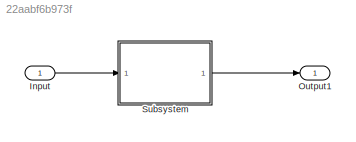
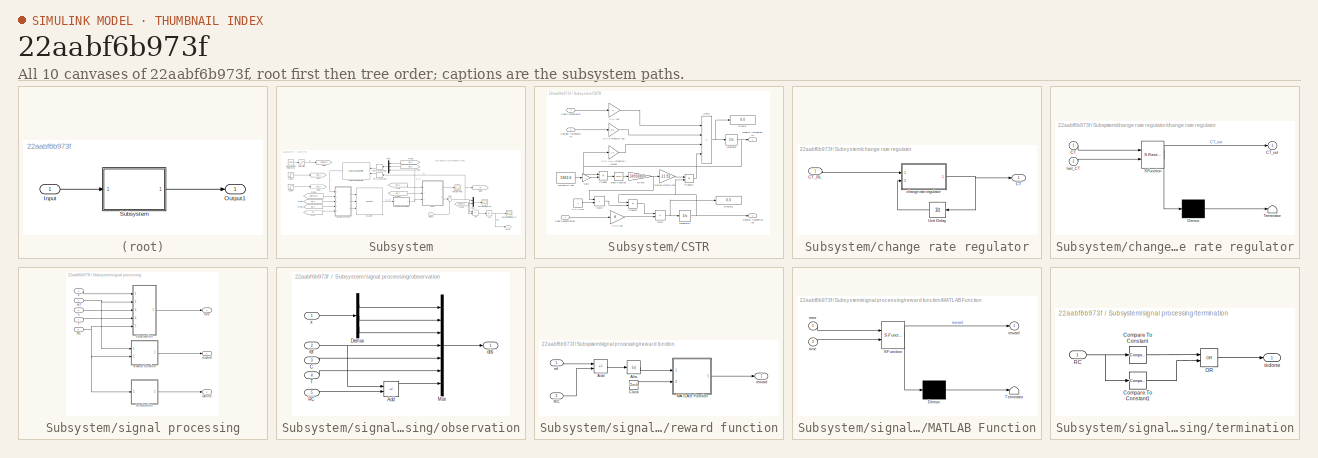
[diagram: thumbnail index - all 10 canvases of the model, root first then tree order]
MODEL slx_22aabf6b973f
KIND model
CONFIG AbsTol = auto
CONFIG EnableMultiTasking = off
CONFIG FixedStep = Ts
CONFIG MaxStep = auto
CONFIG MinStep = auto
CONFIG RelTol = 1e-3
CONFIG SampleTimeConstraint = Unconstrained
CONFIG SolverName = FixedStepAuto
CONFIG StartTime = 0.0
CONFIG StopTime = T
BLOCK [Inport] Input
BLOCK [Outport] Output1
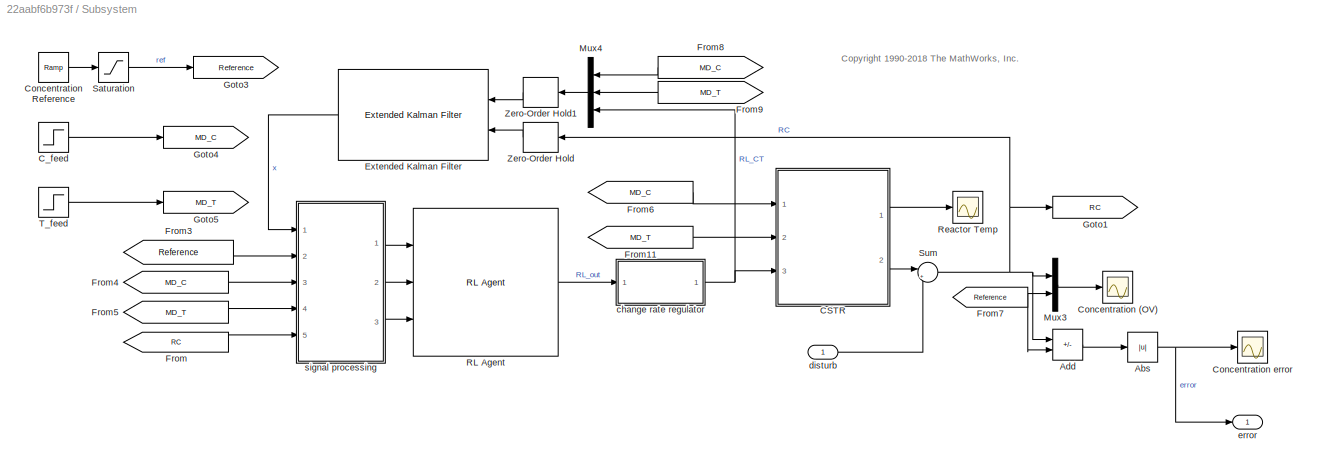
BLOCK [SubSystem] Subsystem
  Ports = [1, 1]
  RequestExecContextInheritance = off
BLOCK [Abs] Subsystem/Abs
  SaturateOnIntegerOverflow = off
BLOCK [Sum] Subsystem/Add
  IconShape = rectangular
  Inputs = +-
  Ports = [2, 1]
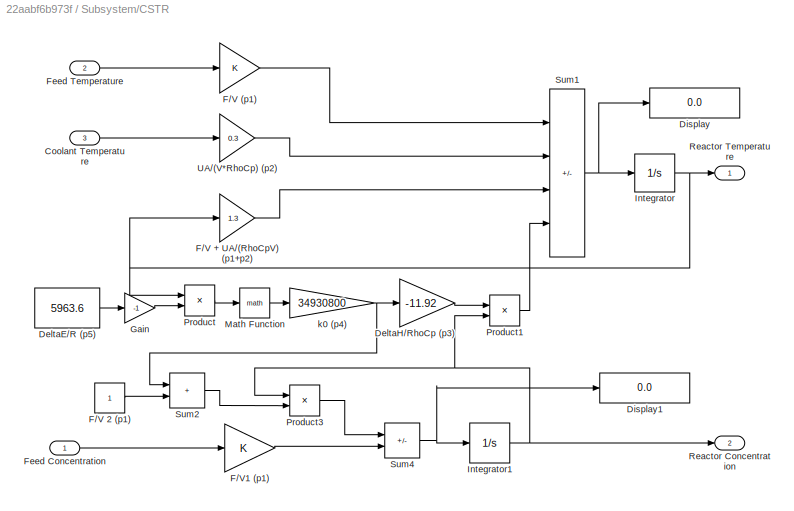
BLOCK [SubSystem] Subsystem/CSTR
  Ports = [3, 2]
  RequestExecContextInheritance = off
BLOCK [Inport] Subsystem/CSTR/Coolant Temperature
  Port = 3
BLOCK [Constant] Subsystem/CSTR/DeltaE//R (p5)
  Value = 5963.6
BLOCK [Gain] Subsystem/CSTR/DeltaH//RhoCp (p3)
  Gain = -11.92
  OutDataTypeStr = Inherit: Same as input
  ParamDataTypeStr = Inherit: Same as input
  SaturateOnIntegerOverflow = on
BLOCK [Display] Subsystem/CSTR/Display
  Decimation = 1
  Ports = [1]
BLOCK [Display] Subsystem/CSTR/Display1
  Decimation = 1
  Ports = [1]
BLOCK [Gain] Subsystem/CSTR/F//V (p1)
  OutDataTypeStr = Inherit: Same as input
  ParamDataTypeStr = Inherit: Same as input
  SaturateOnIntegerOverflow = on
BLOCK [Gain] Subsystem/CSTR/F//V + UA//(RhoCpV) (p1+p2)
  Gain = 1.3
  OutDataTypeStr = Inherit: Same as input
  ParamDataTypeStr = Inherit: Same as input
  SaturateOnIntegerOverflow = on
BLOCK [Constant] Subsystem/CSTR/F//V 2 (p1)
BLOCK [Gain] Subsystem/CSTR/F//V1 (p1)
  OutDataTypeStr = Inherit: Same as input
  ParamDataTypeStr = Inherit: Same as input
  SaturateOnIntegerOverflow = on
BLOCK [Inport] Subsystem/CSTR/Feed Concentration
BLOCK [Inport] Subsystem/CSTR/Feed Temperature
  Port = 2
BLOCK [Gain] Subsystem/CSTR/Gain
  Gain = -1
BLOCK [Integrator] Subsystem/CSTR/Integrator
  InitialCondition = x0(1)
  LimitOutput = on
  LowerSaturationLimit = 0
  Ports = [1, 1]
BLOCK [Integrator] Subsystem/CSTR/Integrator1
  InitialCondition = x0(2)
  LimitOutput = on
  LowerSaturationLimit = 0
  Ports = [1, 1]
BLOCK [Math] Subsystem/CSTR/Math Function
  Ports = [1, 1]
  SignedPower = on
BLOCK [Product] Subsystem/CSTR/Product
  InputSameDT = on
  Inputs = /*
  OutDataTypeStr = Inherit: Same as first input
  Ports = [2, 1]
  RndMeth = Zero
  SaturateOnIntegerOverflow = on
BLOCK [Product] Subsystem/CSTR/Product1
  InputSameDT = on
  OutDataTypeStr = Inherit: Same as first input
  Ports = [2, 1]
  RndMeth = Zero
  SaturateOnIntegerOverflow = on
BLOCK [Product] Subsystem/CSTR/Product3
  InputSameDT = on
  OutDataTypeStr = Inherit: Same as first input
  Ports = [2, 1]
  RndMeth = Zero
  SaturateOnIntegerOverflow = on
BLOCK [Outport] Subsystem/CSTR/Reactor Concentration
  Port = 2
  VectorParamsAs1DForOutWhenUnconnected = off
BLOCK [Outport] Subsystem/CSTR/Reactor Temperature
  VectorParamsAs1DForOutWhenUnconnected = off
BLOCK [Sum] Subsystem/CSTR/Sum1
  IconShape = rectangular
  InputSameDT = on
  Inputs = ++--
  OutDataTypeStr = Inherit: Same as first input
  Ports = [4, 1]
  SaturateOnIntegerOverflow = on
BLOCK [Sum] Subsystem/CSTR/Sum2
  IconShape = rectangular
  InputSameDT = on
  OutDataTypeStr = Inherit: Same as first input
  Ports = [2, 1]
  SaturateOnIntegerOverflow = on
BLOCK [Sum] Subsystem/CSTR/Sum4
  IconShape = rectangular
  InputSameDT = on
  Inputs = -+
  OutDataTypeStr = Inherit: Same as first input
  Ports = [2, 1]
  SaturateOnIntegerOverflow = on
BLOCK [Gain] Subsystem/CSTR/UA//(V*RhoCp) (p2)
  Gain = 0.3
  OutDataTypeStr = Inherit: Same as input
  ParamDataTypeStr = Inherit: Same as input
  SaturateOnIntegerOverflow = on
BLOCK [Gain] Subsystem/CSTR/k0 (p4)
  Gain = 34930800
  OutDataTypeStr = Inherit: Same as input
  ParamDataTypeStr = Inherit: Same as input
  SaturateOnIntegerOverflow = on
BLOCK [Step] Subsystem/C_feed
  After = 10.3
  Before = 10
  SampleTime = 0
  Time = 10
BLOCK [Scope] Subsystem/Concentration (OV)
  Floating = off
  NumInputPorts = 1
  Ports = [1]
  ScopeSpecificationString = Simulink.scopes.TimeScopeBlockCfg('CurrentConfiguration', extmgr.ConfigurationSet(extmgr.Configuration('Core','General UI',true),extmgr.Configuration('Core','Source UI',true),extmgr.Configuration('Sources','WiredSimulink',true),extmgr.Configuration('Visuals','Time Domain',true,'SerializedDisplays',{struct('MinYLimReal','1.15346','MaxYLimReal','9.39385','YLabelReal','','MinYLimMag','1.15346','MaxYL...<+1400ch>
BLOCK [Reference] Subsystem/Concentration Reference  REF=simulink/Sources/Ramp
  Ports = [0, 1]
  SourceBlock = simulink/Sources/Ramp
  SourceProductBaseCode = SL
  SourceType = Ramp
BLOCK [Scope] Subsystem/Concentration error
  Floating = off
  NumInputPorts = 1
  Ports = [1]
  ScopeSpecificationString = Simulink.scopes.TimeScopeBlockCfg('CurrentConfiguration', extmgr.ConfigurationSet(extmgr.Configuration('Core','General UI',true),extmgr.Configuration('Core','Source UI',true),extmgr.Configuration('Sources','WiredSimulink',true,'DataLoggingVariableName','ScopeData1'),extmgr.Configuration('Visuals','Time Domain',true,'SerializedDisplays',{struct('MinYLimReal','1.15346','MaxYLimReal','9.39385','YLabe...<+1439ch>
BLOCK [Reference] Subsystem/Extended Kalman Filter  REF=sharedTrackingLibrary/Extended Kalman Filter
  Ports = [2, 1]
  SourceBlock = sharedTrackingLibrary/Extended Kalman Filter
  SourceProductBaseCode = CT,DR,TF,ID,LP,NV,AR,RO,RR,UV,VE
  SourceType = Extended Kalman Filter
BLOCK [From] Subsystem/From
  GotoTag = RC
BLOCK [From] Subsystem/From11
  GotoTag = MD_T
BLOCK [From] Subsystem/From3
  GotoTag = Reference
BLOCK [From] Subsystem/From4
  GotoTag = MD_C
BLOCK [From] Subsystem/From5
  GotoTag = MD_T
BLOCK [From] Subsystem/From6
  GotoTag = MD_C
BLOCK [From] Subsystem/From7
  GotoTag = Reference
BLOCK [From] Subsystem/From8
  GotoTag = MD_C
BLOCK [From] Subsystem/From9
  GotoTag = MD_T
BLOCK [Goto] Subsystem/Goto1
  GotoTag = RC
BLOCK [Goto] Subsystem/Goto3
  GotoTag = Reference
BLOCK [Goto] Subsystem/Goto4
  GotoTag = MD_C
BLOCK [Goto] Subsystem/Goto5
  GotoTag = MD_T
BLOCK [Mux] Subsystem/Mux3
  DisplayOption = bar
  Inputs = 2
  Ports = [2, 1]
BLOCK [Mux] Subsystem/Mux4
  DisplayOption = bar
  Inputs = 3
  Ports = [3, 1]
BLOCK [Reference] Subsystem/RL Agent  REF=rllib/RL Agent
  Ports = [3, 1]
  SourceBlock = rllib/RL Agent
  SourceProductBaseCode = RL
  SourceType = RL Agent
BLOCK [Scope] Subsystem/Reactor Temp
  Floating = off
  NumInputPorts = 1
  Ports = [1]
  ScopeSpecificationString = Simulink.scopes.TimeScopeBlockCfg('CurrentConfiguration', extmgr.ConfigurationSet(extmgr.Configuration('Core','General UI',true),extmgr.Configuration('Core','Source UI',true),extmgr.Configuration('Sources','WiredSimulink',true,'DataLoggingVariableName','ScopeData1'),extmgr.Configuration('Visuals','Time Domain',true,'SerializedDisplays',{struct('MinYLimReal','301.39432','MaxYLimReal','399.70963','Y...<+1404ch>
BLOCK [Saturate] Subsystem/Saturation
  LowerLimit = 2
  UpperLimit = 10
BLOCK [Sum] Subsystem/Sum
  Inputs = |++
  Ports = [2, 1]
BLOCK [Step] Subsystem/T_feed
  After = 298.15
  Before = 298.15
  SampleTime = 301
  Time = 20
BLOCK [ZeroOrderHold] Subsystem/Zero-Order Hold
  SampleTime = Ts
BLOCK [ZeroOrderHold] Subsystem/Zero-Order Hold1
  SampleTime = Ts
BLOCK [SubSystem] Subsystem/change rate regulator
  Ports = [1, 1]
  RequestExecContextInheritance = off
BLOCK [Outport] Subsystem/change rate regulator/CT 
BLOCK [Inport] Subsystem/change rate regulator/CT_RL
BLOCK [UnitDelay] Subsystem/change rate regulator/Unit Delay
  HasFrameUpgradeWarning = on
  InitialCondition = 300
  SampleTime = -1
BLOCK [SubSystem] Subsystem/change rate regulator/change rate regulator
  ErrorFcn = Stateflow.Translate.translate
  PermitHierarchicalResolution = ExplicitOnly
  Ports = [2, 1]
  RequestExecContextInheritance = off
  SFBlockType = MATLAB Function
  TreatAsAtomicUnit = on
BLOCK [Demux] Subsystem/change rate regulator/change rate regulator/ Demux 
  Outputs = 1
  Ports = [1, 1]
BLOCK [S-Function] Subsystem/change rate regulator/change rate regulator/ SFunction 
  EnableBusSupport = on
  FunctionName = sf_sfun
  PortCounts = [2 2]
  Ports = [2, 2]
  SFcnIsStateOwnerBlock = off
  SFunctionDeploymentMode = off
  Tag = Stateflow S-Function 1
BLOCK [Terminator] Subsystem/change rate regulator/change rate regulator/ Terminator 
BLOCK [Inport] Subsystem/change rate regulator/change rate regulator/CT
BLOCK [Outport] Subsystem/change rate regulator/change rate regulator/CT_out
BLOCK [Inport] Subsystem/change rate regulator/change rate regulator/last_CT
  Port = 2
BLOCK [Inport] Subsystem/disturb
BLOCK [Outport] Subsystem/error
BLOCK [SubSystem] Subsystem/signal processing
  Ports = [5, 3]
  RequestExecContextInheritance = off
BLOCK [Inport] Subsystem/signal processing/C
  Port = 3
BLOCK [Inport] Subsystem/signal processing/RC
  Port = 5
BLOCK [Inport] Subsystem/signal processing/T
  Port = 4
BLOCK [Outport] Subsystem/signal processing/isdone
  Port = 3
BLOCK [Outport] Subsystem/signal processing/obs
BLOCK [SubSystem] Subsystem/signal processing/observation
  Ports = [5, 1]
  RequestExecContextInheritance = off
BLOCK [Sum] Subsystem/signal processing/observation/Add
  IconShape = rectangular
  Inputs = +-
  Ports = [2, 1]
BLOCK [Inport] Subsystem/signal processing/observation/C
  Port = 3
BLOCK [Demux] Subsystem/signal processing/observation/Demux
  Outputs = 3
  Ports = [1, 3]
BLOCK [Mux] Subsystem/signal processing/observation/Mux
  DisplayOption = bar
  Inputs = 7
  Ports = [7, 1]
BLOCK [Inport] Subsystem/signal processing/observation/RC
  Port = 5
BLOCK [Inport] Subsystem/signal processing/observation/T
  Port = 4
BLOCK [Outport] Subsystem/signal processing/observation/obs
BLOCK [Inport] Subsystem/signal processing/observation/ref
  Port = 2
BLOCK [Inport] Subsystem/signal processing/observation/x
BLOCK [Inport] Subsystem/signal processing/ref
  Port = 2
BLOCK [Outport] Subsystem/signal processing/reward
  Port = 2
BLOCK [SubSystem] Subsystem/signal processing/reward function
  Ports = [2, 1]
  RequestExecContextInheritance = off
BLOCK [Abs] Subsystem/signal processing/reward function/Abs
  SaturateOnIntegerOverflow = off
BLOCK [Sum] Subsystem/signal processing/reward function/Add
  IconShape = rectangular
  Inputs = +-
  Ports = [2, 1]
BLOCK [Clock] Subsystem/signal processing/reward function/Clock
BLOCK [SubSystem] Subsystem/signal processing/reward function/MATLAB Function
  ErrorFcn = Stateflow.Translate.translate
  PermitHierarchicalResolution = ExplicitOnly
  Ports = [2, 1]
  RequestExecContextInheritance = off
  SFBlockType = MATLAB Function
  TreatAsAtomicUnit = on
BLOCK [Demux] Subsystem/signal processing/reward function/MATLAB Function/ Demux 
  Outputs = 1
  Ports = [1, 1]
BLOCK [S-Function] Subsystem/signal processing/reward function/MATLAB Function/ SFunction 
  EnableBusSupport = on
  FunctionName = sf_sfun
  PortCounts = [2 2]
  Ports = [2, 2]
  SFcnIsStateOwnerBlock = off
  SFunctionDeploymentMode = off
  Tag = Stateflow S-Function 2
BLOCK [Terminator] Subsystem/signal processing/reward function/MATLAB Function/ Terminator 
BLOCK [Inport] Subsystem/signal processing/reward function/MATLAB Function/error
BLOCK [Outport] Subsystem/signal processing/reward function/MATLAB Function/reward
BLOCK [Inport] Subsystem/signal processing/reward function/MATLAB Function/time
  Port = 2
BLOCK [Inport] Subsystem/signal processing/reward function/RC
  Port = 2
BLOCK [Inport] Subsystem/signal processing/reward function/ref
BLOCK [Outport] Subsystem/signal processing/reward function/reward
BLOCK [SubSystem] Subsystem/signal processing/termination
  Ports = [1, 1]
  RequestExecContextInheritance = off
BLOCK [Reference] Subsystem/signal processing/termination/Compare To Constant  REF=simulink/Logic and Bit
Operations/Compare
To Constant
  Ports = [1, 1]
  SourceBlock = simulink/Logic and Bit\nOperations/Compare\nTo Constant
  SourceProductBaseCode = SL
  SourceType = Compare To Constant
BLOCK [Reference] Subsystem/signal processing/termination/Compare To Constant1  REF=simulink/Logic and Bit
Operations/Compare
To Constant
  Ports = [1, 1]
  SourceBlock = simulink/Logic and Bit\nOperations/Compare\nTo Constant
  SourceProductBaseCode = SL
  SourceType = Compare To Constant
BLOCK [Logic] Subsystem/signal processing/termination/OR
  AllPortsSameDT = off
  IconShape = distinctive
  Operator = OR
  OutDataTypeStr = boolean
  Ports = [2, 1]
BLOCK [Inport] Subsystem/signal processing/termination/RC
BLOCK [Outport] Subsystem/signal processing/termination/isdone
BLOCK [Inport] Subsystem/signal processing/x
ANNOTATION Subsystem: <copyright redacted>
LINE Input:1 -> Subsystem:1
NET Subsystem/Abs:1 -> Subsystem/Concentration error:1, Subsystem/error:1
LINE Subsystem/Add:1 -> Subsystem/Abs:1
LINE Subsystem/CSTR/Coolant Temperature:1 -> Subsystem/CSTR/UA//(V*RhoCp) (p2):1
LINE Subsystem/CSTR/DeltaE//R (p5):1 -> Subsystem/CSTR/Gain:1
LINE Subsystem/CSTR/DeltaH//RhoCp (p3):1 -> Subsystem/CSTR/Product1:1
LINE Subsystem/CSTR/F//V (p1):1 -> Subsystem/CSTR/Sum1:1
LINE Subsystem/CSTR/F//V + UA//(RhoCpV) (p1+p2):1 -> Subsystem/CSTR/Sum1:3
LINE Subsystem/CSTR/F//V 2 (p1):1 -> Subsystem/CSTR/Sum2:2
LINE Subsystem/CSTR/F//V1 (p1):1 -> Subsystem/CSTR/Sum4:2
LINE Subsystem/CSTR/Feed Concentration:1 -> Subsystem/CSTR/F//V1 (p1):1
LINE Subsystem/CSTR/Feed Temperature:1 -> Subsystem/CSTR/F//V (p1):1
LINE Subsystem/CSTR/Gain:1 -> Subsystem/CSTR/Product:2
NET Subsystem/CSTR/Integrator1:1 -> Subsystem/CSTR/Product1:2, Subsystem/CSTR/Product3:1, Subsystem/CSTR/Reactor Concentration:1
NET Subsystem/CSTR/Integrator:1 -> Subsystem/CSTR/F//V + UA//(RhoCpV) (p1+p2):1, Subsystem/CSTR/Product:1, Subsystem/CSTR/Reactor Temperature:1
LINE Subsystem/CSTR/Math Function:1 -> Subsystem/CSTR/k0 (p4):1
LINE Subsystem/CSTR/Product1:1 -> Subsystem/CSTR/Sum1:4
LINE Subsystem/CSTR/Product3:1 -> Subsystem/CSTR/Sum4:1
LINE Subsystem/CSTR/Product:1 -> Subsystem/CSTR/Math Function:1
NET Subsystem/CSTR/Sum1:1 -> Subsystem/CSTR/Display:1, Subsystem/CSTR/Integrator:1
LINE Subsystem/CSTR/Sum2:1 -> Subsystem/CSTR/Product3:2
NET Subsystem/CSTR/Sum4:1 -> Subsystem/CSTR/Display1:1, Subsystem/CSTR/Integrator1:1
LINE Subsystem/CSTR/UA//(V*RhoCp) (p2):1 -> Subsystem/CSTR/Sum1:2
NET Subsystem/CSTR/k0 (p4):1 -> Subsystem/CSTR/DeltaH//RhoCp (p3):1, Subsystem/CSTR/Sum2:1
LINE Subsystem/CSTR:1 -> Subsystem/Reactor Temp:1
LINE Subsystem/CSTR:2 -> Subsystem/Sum:1
LINE Subsystem/C_feed:1 -> Subsystem/Goto4:1
LINE Subsystem/Concentration Reference:1 -> Subsystem/Saturation:1
LINE Subsystem/Extended Kalman Filter:1 -> Subsystem/signal processing:1
LINE Subsystem/From11:1 -> Subsystem/CSTR:2
LINE Subsystem/From3:1 -> Subsystem/signal processing:2
LINE Subsystem/From4:1 -> Subsystem/signal processing:3
LINE Subsystem/From5:1 -> Subsystem/signal processing:4
LINE Subsystem/From6:1 -> Subsystem/CSTR:1
NET Subsystem/From7:1 -> Subsystem/Add:2, Subsystem/Mux3:2
LINE Subsystem/From8:1 -> Subsystem/Mux4:1
LINE Subsystem/From9:1 -> Subsystem/Mux4:2
LINE Subsystem/From:1 -> Subsystem/signal processing:5
LINE Subsystem/Mux3:1 -> Subsystem/Concentration (OV):1
LINE Subsystem/Mux4:1 -> Subsystem/Zero-Order Hold1:1
LINE Subsystem/RL Agent:1 -> Subsystem/change rate regulator:1
LINE Subsystem/Saturation:1 -> Subsystem/Goto3:1
NET Subsystem/Sum:1 -> Subsystem/Add:1, Subsystem/Goto1:1, Subsystem/Mux3:1, Subsystem/Zero-Order Hold:1
LINE Subsystem/T_feed:1 -> Subsystem/Goto5:1
LINE Subsystem/Zero-Order Hold1:1 -> Subsystem/Extended Kalman Filter:1
LINE Subsystem/Zero-Order Hold:1 -> Subsystem/Extended Kalman Filter:2
LINE Subsystem/change rate regulator/CT_RL:1 -> Subsystem/change rate regulator/change rate regulator:1
LINE Subsystem/change rate regulator/Unit Delay:1 -> Subsystem/change rate regulator/change rate regulator:2
NET Subsystem/change rate regulator/change rate regulator:1 -> Subsystem/change rate regulator/CT :1, Subsystem/change rate regulator/Unit Delay:1
NET Subsystem/change rate regulator:1 -> Subsystem/CSTR:3, Subsystem/Mux4:3
LINE Subsystem/disturb:1 -> Subsystem/Sum:2
LINE Subsystem/signal processing/C:1 -> Subsystem/signal processing/observation:3
NET Subsystem/signal processing/RC:1 -> Subsystem/signal processing/observation:5, Subsystem/signal processing/reward function:2, Subsystem/signal processing/termination:1
LINE Subsystem/signal processing/T:1 -> Subsystem/signal processing/observation:4
LINE Subsystem/signal processing/observation/Add:1 -> Subsystem/signal processing/observation/Mux:7
LINE Subsystem/signal processing/observation/C:1 -> Subsystem/signal processing/observation/Mux:5
LINE Subsystem/signal processing/observation/Demux:1 -> Subsystem/signal processing/observation/Mux:1
LINE Subsystem/signal processing/observation/Demux:2 -> Subsystem/signal processing/observation/Mux:2
LINE Subsystem/signal processing/observation/Demux:3 -> Subsystem/signal processing/observation/Mux:3
LINE Subsystem/signal processing/observation/Mux:1 -> Subsystem/signal processing/observation/obs:1
LINE Subsystem/signal processing/observation/RC:1 -> Subsystem/signal processing/observation/Add:2
LINE Subsystem/signal processing/observation/T:1 -> Subsystem/signal processing/observation/Mux:6
NET Subsystem/signal processing/observation/ref:1 -> Subsystem/signal processing/observation/Add:1, Subsystem/signal processing/observation/Mux:4
LINE Subsystem/signal processing/observation/x:1 -> Subsystem/signal processing/observation/Demux:1
LINE Subsystem/signal processing/observation:1 -> Subsystem/signal processing/obs:1
NET Subsystem/signal processing/ref:1 -> Subsystem/signal processing/observation:2, Subsystem/signal processing/reward function:1
LINE Subsystem/signal processing/reward function/Abs:1 -> Subsystem/signal processing/reward function/MATLAB Function:1
LINE Subsystem/signal processing/reward function/Add:1 -> Subsystem/signal processing/reward function/Abs:1
LINE Subsystem/signal processing/reward function/Clock:1 -> Subsystem/signal processing/reward function/MATLAB Function:2
LINE Subsystem/signal processing/reward function/MATLAB Function:1 -> Subsystem/signal processing/reward function/reward:1
LINE Subsystem/signal processing/reward function/RC:1 -> Subsystem/signal processing/reward function/Add:2
LINE Subsystem/signal processing/reward function/ref:1 -> Subsystem/signal processing/reward function/Add:1
LINE Subsystem/signal processing/reward function:1 -> Subsystem/signal processing/reward:1
LINE Subsystem/signal processing/termination/Compare To Constant1:1 -> Subsystem/signal processing/termination/OR:2
LINE Subsystem/signal processing/termination/Compare To Constant:1 -> Subsystem/signal processing/termination/OR:1
LINE Subsystem/signal processing/termination/OR:1 -> Subsystem/signal processing/termination/isdone:1
NET Subsystem/signal processing/termination/RC:1 -> Subsystem/signal processing/termination/Compare To Constant1:1, Subsystem/signal processing/termination/Compare To Constant:1
LINE Subsystem/signal processing/termination:1 -> Subsystem/signal processing/isdone:1
LINE Subsystem/signal processing/x:1 -> Subsystem/signal processing/observation:1
LINE Subsystem/signal processing:1 -> Subsystem/RL Agent:1
LINE Subsystem/signal processing:2 -> Subsystem/RL Agent:2
LINE Subsystem/signal processing:3 -> Subsystem/RL Agent:3
LINE Subsystem:1 -> Output1:1
note: NET lines group one-source signal fan-out (src -> all destinations, sorted); 1:1 wires keep LINE
CHART Subsystem/signal processing/reward function/MATLAB Function states=1 transitions=1
  STATE_LABEL 'eML_blk_kernel()'
  STATE_LABEL 'SCRIPT:\nfunction reward = fcn(error, time)\n\npos = exp(-error);\nneg = -tanh(error/1.5);\n\nif error < 1.5\n    bonus = 1;\nelse\n    bonus = 0;\nend\n\nreward = 3*pos + 2*neg + bonus;\n\n% if time < 15\n%     reward = -0.1*tanh(error/1.5);\n% else\n%     reward = -5*tanh(error*1.5);\n% end\n% \n% if error < 1\n%     reward = reward + 10;\n% else\n%     reward = reward - 1;\n% end'
CHART Subsystem/change rate regulator/change rate regulator states=1 transitions=1
  STATE_LABEL 'eML_blk_kernel()'
  STATE_LABEL 'SCRIPT:\nfunction CT_out = fcn(CT, last_CT)\n\nif CT - last_CT > 5\n    CT_out = last_CT + 5;\n    \nelseif CT - last_CT < -5\n    CT_out = last_CT - 5;\n    \nelse\n    CT_out = CT;\nend'
CHART  states=0 transitions=0
CHART  states=0 transitions=0
